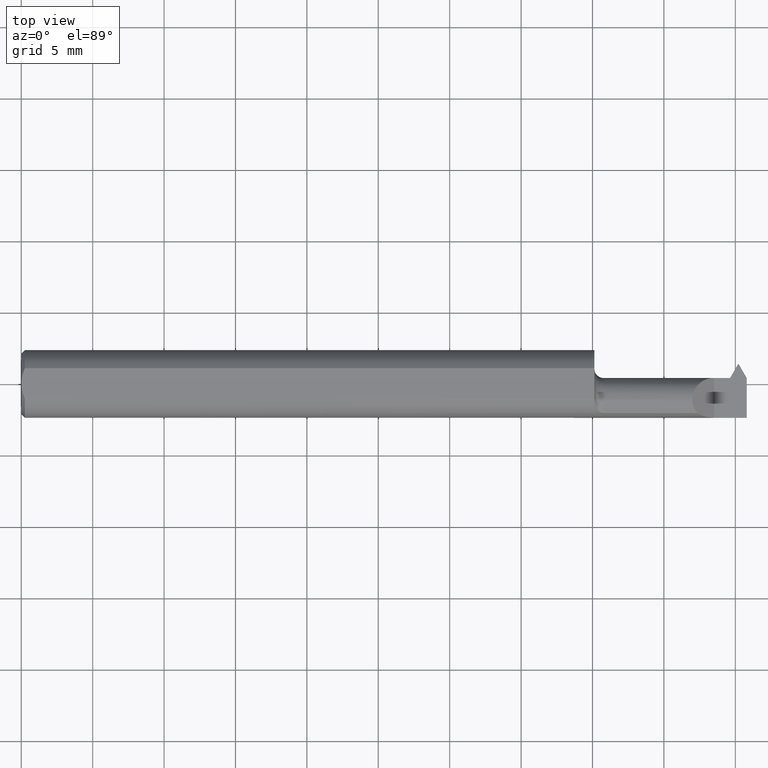
[diagram: clean part render]
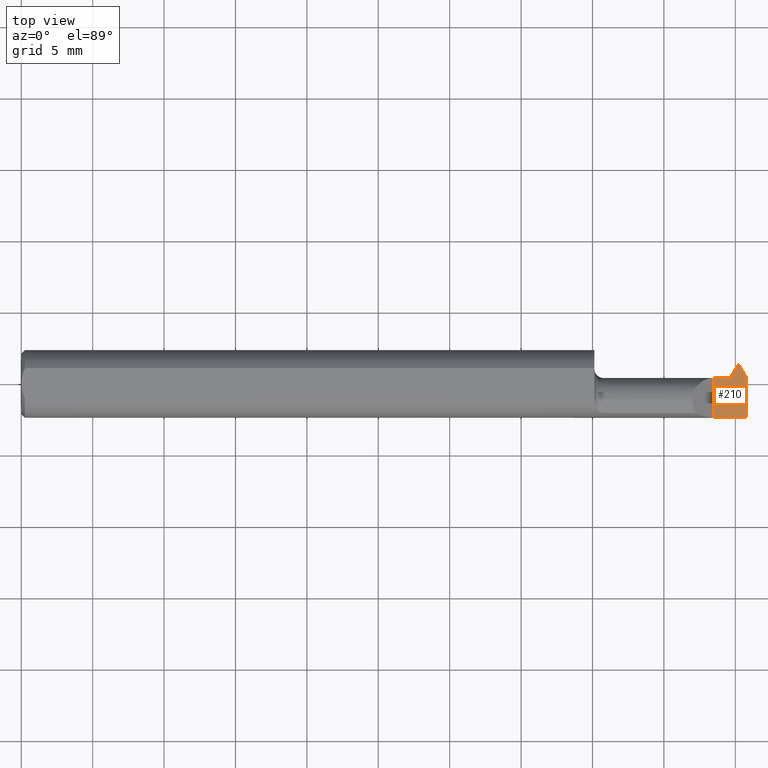
[diagram: same view with one face highlighted and labeled with its STEP entity id]
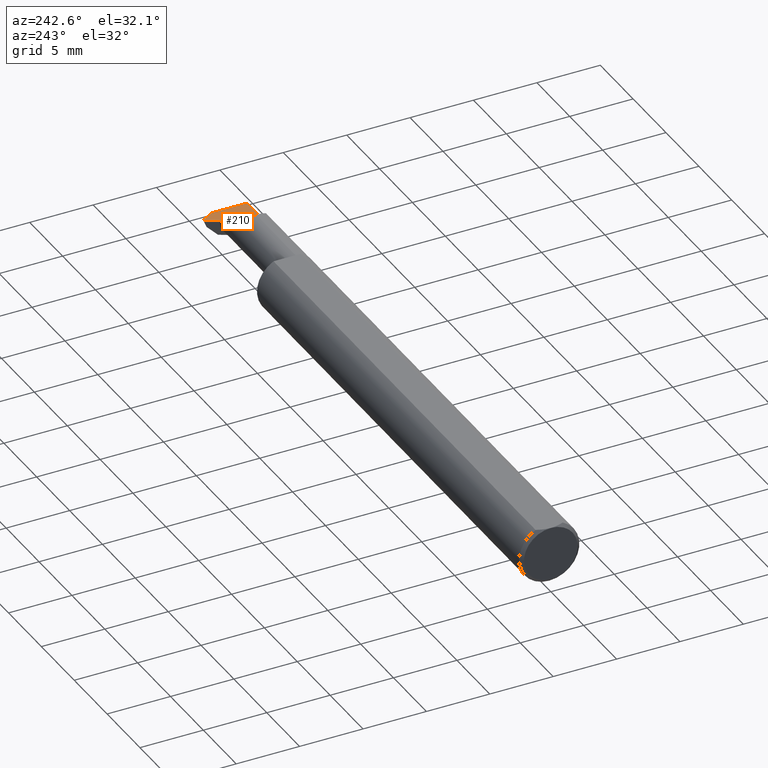
[diagram: same view with one face highlighted and labeled with its STEP entity id]
A machine part, top view. The second image highlights one B-rep face of the part: STEP entity #210.
A second angle (auxiliary view) of the same face is appended — the face is thin or edge-on in the first view.
In plain terms, the highlighted planar face has unit normal (-0, 0, -1).
Its self-contained STEP definition (entity closure, byte-faithful):
#1 = CARTESIAN_POINT ( 'NONE',  ( 1.954060689770794390, 0.01640000000000000138, 0.000000000000000000 ) ) ;
#3 = EDGE_CURVE ( 'NONE', #419, #258, #812, .T. ) ;
#32 = ORIENTED_EDGE ( 'NONE', *, *, #736, .F. ) ;
#33 = CARTESIAN_POINT ( 'NONE',  ( 2.999519565323742037E-32, -0.09359999999999998876, 2.449293598294716768E-16 ) ) ;
#36 = VECTOR ( 'NONE', #38, 39.37007874015748854 ) ;
#38 = DIRECTION ( 'NONE',  ( 0.4999999999999949485, 0.8660254037844414832, -0.000000000000000000 ) ) ;
#42 = ORIENTED_EDGE ( 'NONE', *, *, #493, .F. ) ;
#84 = PLANE ( 'NONE',  #893 ) ;
#86 = CARTESIAN_POINT ( 'NONE',  ( 1.580000000000000071, 0.05439999999999996921, 5.143516556418903512E-17 ) ) ;
#102 = VERTEX_POINT ( 'NONE', #485 ) ;
#145 = ORIENTED_EDGE ( 'NONE', *, *, #3, .F. ) ;
#198 = DIRECTION ( 'NONE',  ( 1.000000000000000000, 0.000000000000000000, 0.000000000000000000 ) ) ;
#201 = VECTOR ( 'NONE', #824, 39.37007874015748143 ) ;
#210 = ADVANCED_FACE ( 'NONE', ( #213 ), #84, .F. ) ;
#213 = FACE_OUTER_BOUND ( 'NONE', #619, .T. ) ;
#216 = LINE ( 'NONE', #285, #430 ) ;
#222 = CARTESIAN_POINT ( 'NONE',  ( 2.000000000000000000, -0.2500000000000000555, 0.000000000000000000 ) ) ;
#245 = CARTESIAN_POINT ( 'NONE',  ( 1.947060689770794273, 0.01639999999999993546, 0.000000000000000000 ) ) ;
#258 = VERTEX_POINT ( 'NONE', #1 ) ;
#279 = ORIENTED_EDGE ( 'NONE', *, *, #782, .F. ) ;
#285 = CARTESIAN_POINT ( 'NONE',  ( 1.977999999999999980, 0.05439999999999999003, 0.000000000000000000 ) ) ;
#287 = VECTOR ( 'NONE', #198, 39.37007874015748143 ) ;
#301 = DIRECTION ( 'NONE',  ( -1.000000000000000000, 0.000000000000000000, 1.224646799147358877E-16 ) ) ;
#303 = LINE ( 'NONE', #33, #518 ) ;
#306 = ORIENTED_EDGE ( 'NONE', *, *, #861, .F. ) ;
#318 = VECTOR ( 'NONE', #651, 39.37007874015748143 ) ;
#357 = LINE ( 'NONE', #86, #318 ) ;
#363 = VECTOR ( 'NONE', #663, 39.37007874015748143 ) ;
#367 = DIRECTION ( 'NONE',  ( 0.4999999999999948375, -0.8660254037844414832, 0.000000000000000000 ) ) ;
#371 = LINE ( 'NONE', #458, #201 ) ;
#385 = LINE ( 'NONE', #440, #363 ) ;
#395 = LINE ( 'NONE', #604, #287 ) ;
#413 = ORIENTED_EDGE ( 'NONE', *, *, #900, .F. ) ;
#419 = VERTEX_POINT ( 'NONE', #245 ) ;
#430 = VECTOR ( 'NONE', #367, 39.37007874015748854 ) ;
#439 = ORIENTED_EDGE ( 'NONE', *, *, #632, .F. ) ;
#440 = CARTESIAN_POINT ( 'NONE',  ( 1.910000000000000142, -0.2500000000000000555, 1.102182119232621301E-17 ) ) ;
#450 = DIRECTION ( 'NONE',  ( 1.000000000000000000, 9.756599977372054276E-15, -0.000000000000000000 ) ) ;
#458 = CARTESIAN_POINT ( 'NONE',  ( 2.000000000000000000, 0.000000000000000000, 0.000000000000000000 ) ) ;
#459 = CARTESIAN_POINT ( 'NONE',  ( 1.977999999999999980, 0.05439999999999999003, 0.000000000000000000 ) ) ;
#461 = VERTEX_POINT ( 'NONE', #459 ) ;
#485 = CARTESIAN_POINT ( 'NONE',  ( 1.910000000000000142, 0.01640000000000000138, 5.143516556418903512E-17 ) ) ;
#493 = EDGE_CURVE ( 'NONE', #102, #419, #395, .T. ) ;
#510 = DIRECTION ( 'NONE',  ( -1.224646799147358877E-16, 0.000000000000000000, -1.000000000000000000 ) ) ;
#518 = VECTOR ( 'NONE', #855, 39.37007874015748143 ) ;
#536 = VERTEX_POINT ( 'NONE', #766 ) ;
#572 = CARTESIAN_POINT ( 'NONE',  ( 2.000000000000000000, 0.01629488223348429798, 0.000000000000000000 ) ) ;
#584 = LINE ( 'NONE', #593, #36 ) ;
#593 = CARTESIAN_POINT ( 'NONE',  ( 1.975999999999999979, 0.05439999999999999003, 0.000000000000000000 ) ) ;
#601 = VERTEX_POINT ( 'NONE', #830 ) ;
#604 = CARTESIAN_POINT ( 'NONE',  ( 1.580000000000000071, 0.01640000000000000138, 5.143516556418903512E-17 ) ) ;
#619 = EDGE_LOOP ( 'NONE', ( #32, #279, #145, #42, #735, #306, #413, #439 ) ) ;
#632 = EDGE_CURVE ( 'NONE', #461, #769, #216, .T. ) ;
#640 = CARTESIAN_POINT ( 'NONE',  ( 1.910000000000000142, -0.09360000000000005815, 1.102182119232621301E-17 ) ) ;
#651 = DIRECTION ( 'NONE',  ( 1.000000000000000000, 0.000000000000000000, 0.000000000000000000 ) ) ;
#663 = DIRECTION ( 'NONE',  ( -0.000000000000000000, 1.000000000000000000, -0.000000000000000000 ) ) ;
#735 = ORIENTED_EDGE ( 'NONE', *, *, #818, .F. ) ;
#736 = EDGE_CURVE ( 'NONE', #536, #461, #357, .T. ) ;
#737 = VERTEX_POINT ( 'NONE', #640 ) ;
#766 = CARTESIAN_POINT ( 'NONE',  ( 1.975999999999999979, 0.05439999999999999003, 0.000000000000000000 ) ) ;
#769 = VERTEX_POINT ( 'NONE', #572 ) ;
#782 = EDGE_CURVE ( 'NONE', #258, #536, #584, .T. ) ;
#806 = CARTESIAN_POINT ( 'NONE',  ( 1.954060689770794390, 0.01640000000000000138, 0.000000000000000000 ) ) ;
#812 = LINE ( 'NONE', #806, #890 ) ;
#818 = EDGE_CURVE ( 'NONE', #737, #102, #385, .T. ) ;
#824 = DIRECTION ( 'NONE',  ( 0.000000000000000000, -1.000000000000000000, 0.000000000000000000 ) ) ;
#830 = CARTESIAN_POINT ( 'NONE',  ( 2.000000000000000000, -0.09360000000000001652, 0.000000000000000000 ) ) ;
#855 = DIRECTION ( 'NONE',  ( -1.000000000000000000, -0.000000000000000000, -0.000000000000000000 ) ) ;
#861 = EDGE_CURVE ( 'NONE', #601, #737, #303, .T. ) ;
#890 = VECTOR ( 'NONE', #450, 39.37007874015748143 ) ;
#893 = AXIS2_PLACEMENT_3D ( 'NONE', #222, #510, #301 ) ;
#900 = EDGE_CURVE ( 'NONE', #769, #601, #371, .T. ) ;